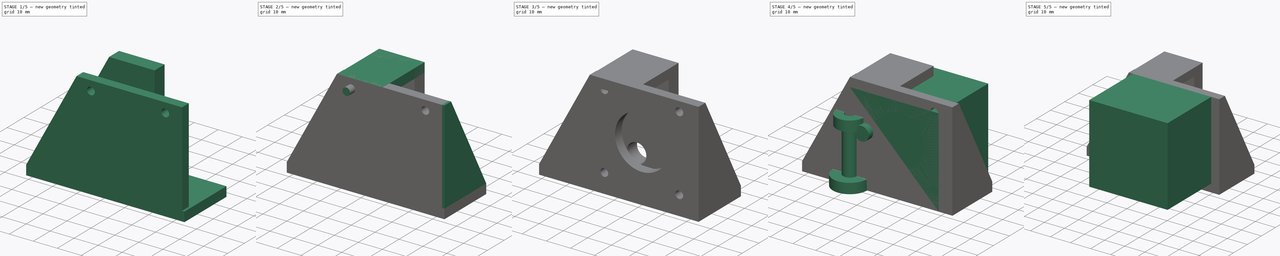
[diagram: build sequence overview — one tinted view per stage of 5, left to right]
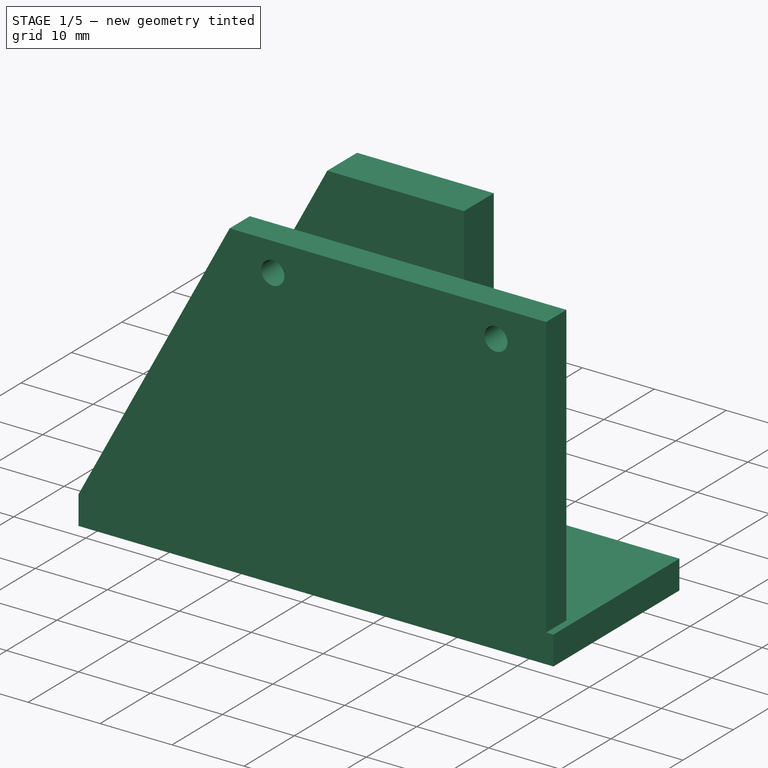
[diagram: stage 1 of 5 — iso view after this stage's code; geometry added in this stage tinted green]
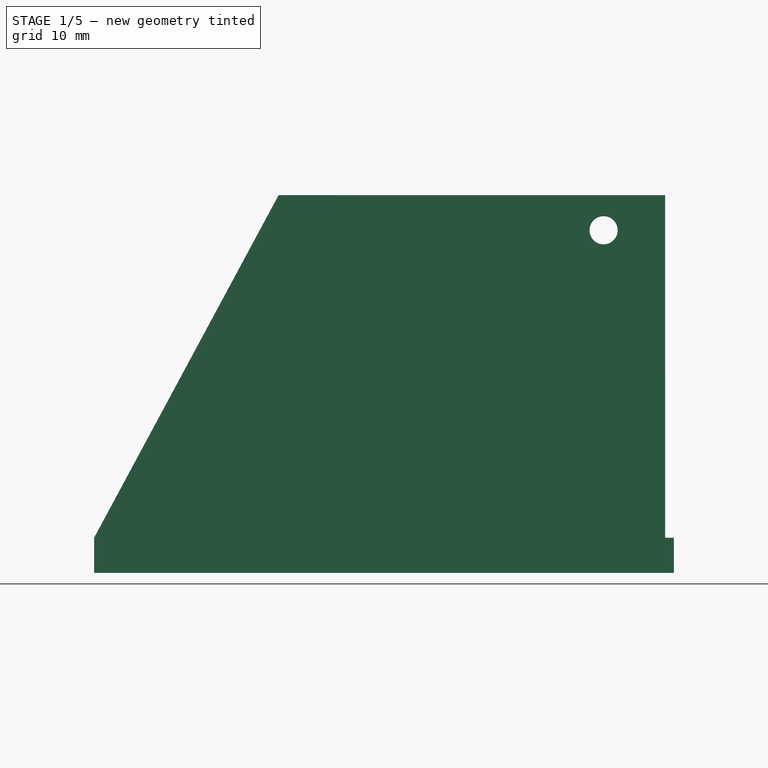
[diagram: stage 1 of 5 — front view after this stage's code; geometry added in this stage tinted green]
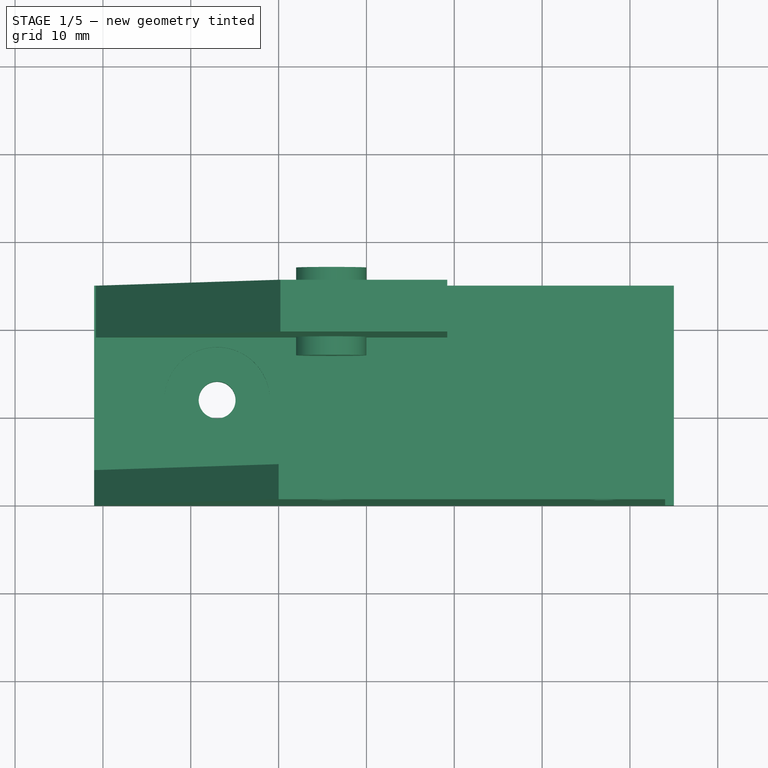
[diagram: stage 1 of 5 — top view after this stage's code; geometry added in this stage tinted green]
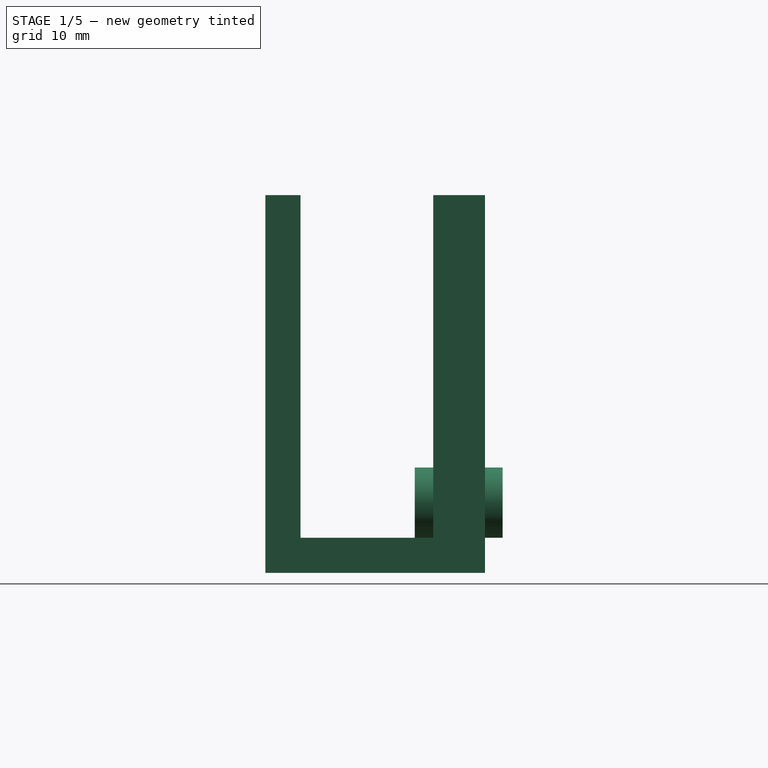
[diagram: stage 1 of 5 — right view after this stage's code; geometry added in this stage tinted green]
FCSTD DOCUMENT  (FreeCAD 0.18R4 (GitTag))
Label: ременная передача
License: All rights reserved
LicenseURL: http://en.wikipedia.org/wiki/All_rights_reserved
objects: Part::Cylinder×29, Part::Cut×21, Part::MultiFuse×6, Sketcher::SketchObject×5, Part::Box×5, Part::Extrusion×4, Part::FeaturePython×2
note: 72 computed .brp shape members not serialized (recipe doc carries the construction recipe); baked Part::Feature solids carry a one-line shape summary decoded from their .brp

FEATURE [Sketcher::SketchObject] Sketch001
  sketch-geometry (4):
    g0: ArcOfCircle CenterX=9 CenterY=15 CenterZ=0 NormalX=0 NormalY=0 NormalZ=1 AngleXU=0 Radius=27.2 StartAngle=6.09831 EndAngle=6.46806
    g1: ArcOfCircle CenterX=9 CenterY=15 CenterZ=0 NormalX=0 NormalY=0 NormalZ=1 AngleXU=0 Radius=22.8 StartAngle=6.06209 EndAngle=6.50428
    g2: ArcOfCircle CenterX=33.4907 CenterY=10.1383 CenterZ=0 NormalX=0 NormalY=0 NormalZ=1 AngleXU=0 Radius=2.25 StartAngle=3.20309 EndAngle=6.22168
    g3: ArcOfCircle CenterX=33.4907 CenterY=19.8617 CenterZ=0 NormalX=0 NormalY=0 NormalZ=1 AngleXU=0 Radius=2.25 StartAngle=0.0615005 EndAngle=3.08009
  constraints (15):
    c: DistanceX(g0) = 9
    c: DistanceY(g0) = 15
    c: Coincident(g1,g0)
    c: Radius(g1) = 22.8
    c: Radius(g0) = 27.2
    c: DistanceY(g-1,g1) = 10
    c: DistanceY(g-1,g0) = 10
    c: DistanceY(g1,g1) = 10
    c: DistanceY(g0,g0) = 10
    c: Coincident(g2,g1)
    c: Coincident(g2,g0)
    c: Radius(g2) = 2.25
    c: Coincident(g3,g1)
    c: Coincident(g0,g3)
    c: Radius(g3) = 2.25
FEATURE [Sketcher::SketchObject] Sketch
  Placement = pos=(0,0,0) rot=(0.57735,0.57735,0.57735;2.0944rad)
  sketch-geometry (5):
    g0: LineSegment StartX=0 StartY=0 StartZ=0 EndX=0 EndY=43 EndZ=0
    g1: LineSegment StartX=0 StartY=43 StartZ=0 EndX=4 EndY=43 EndZ=0
    g2: LineSegment StartX=0 StartY=0 StartZ=0 EndX=25 EndY=0 EndZ=0
    g3: LineSegment StartX=25 StartY=0 StartZ=0 EndX=25 EndY=4 EndZ=0
    g4: LineSegment StartX=4 StartY=43 StartZ=0 EndX=25 EndY=4 EndZ=0
  constraints (14):
    c: Coincident(g0,g-1)
    c: Vertical(g0)
    c: DistanceY(g0,g0) = 43
    c: Horizontal(g1)
    c: Coincident(g1,g0)
    c: DistanceX(g1,g1) = 4
    c: Coincident(g2,g0)
    c: Horizontal(g2)
    c: DistanceX(g2,g2) = 25
    c: Coincident(g3,g2)
    c: Vertical(g3)
    c: DistanceY(g3,g3) = 4
    c: Coincident(g4,g3)
    c: Coincident(g1,g4)
FEATURE [Part::Box] Box002  label="Куб002"
  AttacherType = Attacher::AttachEngine3D
  Height = 43
  Length = 44
  Width = 4
FEATURE [Part::Box] Box003  label="Куб003"
  AttacherType = Attacher::AttachEngine3D
  Height = 4
  Length = 66
  Placement = pos=(-21,0,0) rot=(0,0,1;0rad)
  Width = 25
FEATURE [Part::Cylinder] Cylinder017  label="Цилиндр015"
  Angle = 360
  AttacherType = Attacher::AttachEngine3D
  Height = 10
  Placement = pos=(6,-3,39) rot=(-1,0,0;1.5708rad)
  Radius = 1.6
FEATURE [Part::Cylinder] Cylinder018  label="Цилиндр016"
  Angle = 360
  AttacherType = Attacher::AttachEngine3D
  Height = 10
  Placement = pos=(37,-3,39) rot=(-1,0,0;1.5708rad)
  Radius = 1.6
FEATURE [Part::Cylinder] Cylinder020  label="Цилиндр018"
  Angle = 360
  AttacherType = Attacher::AttachEngine3D
  Height = 10
  Radius = 2.1
FEATURE [Part::Cylinder] Cylinder021  label="Цилиндр019"
  Angle = 360
  AttacherType = Attacher::AttachEngine3D
  Height = 6
  Placement = pos=(0,0,10) rot=(0,0,1;0rad)
  Radius = 6
FEATURE [Part::Cut] Cut010
  Base = -> Box002
  Tool = -> Cylinder018
FEATURE [Part::Cut] Cut011
  Base = -> Cut010
  Tool = -> Cylinder017
FEATURE [Sketcher::SketchObject] Sketch002
  sketch-geometry (4):
    g0: ArcOfCircle CenterX=9 CenterY=15 CenterZ=0 NormalX=0 NormalY=0 NormalZ=1 AngleXU=0 Radius=27.2 StartAngle=6.09831 EndAngle=6.46806
    g1: ArcOfCircle CenterX=9 CenterY=15 CenterZ=0 NormalX=0 NormalY=0 NormalZ=1 AngleXU=0 Radius=22.8 StartAngle=6.06209 EndAngle=6.50428
    g2: ArcOfCircle CenterX=33.4907 CenterY=10.1383 CenterZ=0 NormalX=0 NormalY=0 NormalZ=1 AngleXU=0 Radius=2.25 StartAngle=3.20309 EndAngle=6.22168
    g3: ArcOfCircle CenterX=33.4907 CenterY=19.8617 CenterZ=0 NormalX=0 NormalY=0 NormalZ=1 AngleXU=0 Radius=2.25 StartAngle=0.0615005 EndAngle=3.08009
  constraints (15):
    c: DistanceX(g0) = 9
    c: DistanceY(g0) = 15
    c: Coincident(g1,g0)
    c: Radius(g1) = 22.8
    c: Radius(g0) = 27.2
    c: DistanceY(g-1,g1) = 10
    c: DistanceY(g-1,g0) = 10
    c: DistanceY(g1,g1) = 10
    c: DistanceY(g0,g0) = 10
    c: Coincident(g2,g1)
    c: Coincident(g2,g0)
    c: Radius(g2) = 2.25
    c: Coincident(g3,g1)
    c: Coincident(g0,g3)
    c: Radius(g3) = 2.25
FEATURE [Sketcher::SketchObject] Sketch003
  Placement = pos=(0,0,0) rot=(0.57735,0.57735,0.57735;2.0944rad)
  sketch-geometry (5):
    g0: LineSegment StartX=0 StartY=0 StartZ=0 EndX=0 EndY=43 EndZ=0
    g1: LineSegment StartX=0 StartY=43 StartZ=0 EndX=4 EndY=43 EndZ=0
    g2: LineSegment StartX=0 StartY=0 StartZ=0 EndX=25 EndY=0 EndZ=0
    g3: LineSegment StartX=25 StartY=0 StartZ=0 EndX=25 EndY=4 EndZ=0
    g4: LineSegment StartX=4 StartY=43 StartZ=0 EndX=25 EndY=4 EndZ=0
  constraints (14):
    c: Coincident(g0,g-1)
    c: Vertical(g0)
    c: DistanceY(g0,g0) = 43
    c: Horizontal(g1)
    c: Coincident(g1,g0)
    c: DistanceX(g1,g1) = 4
    c: Coincident(g2,g0)
    c: Horizontal(g2)
    c: DistanceX(g2,g2) = 25
    c: Coincident(g3,g2)
    c: Vertical(g3)
    c: DistanceY(g3,g3) = 4
    c: Coincident(g4,g3)
    c: Coincident(g1,g4)
FEATURE [Part::Extrusion] Extrude005
  Base = -> Sketch003
  Dir = (1,0,0)
  DirMode = 0
  FaceMakerClass = Part::FaceMakerBullseye
  LengthFwd = 4
  LengthRev = 0
  Placement = pos=(4,1e-15,0) rot=(0,0,1;1.5708rad)
  Solid = true
  Symmetric = false
FEATURE [Sketcher::SketchObject] Sketch004
  Placement = pos=(0,0,0) rot=(0.57735,0.57735,0.57735;2.0944rad)
  sketch-geometry (5):
    g0: LineSegment StartX=0 StartY=0 StartZ=0 EndX=0 EndY=43 EndZ=0
    g1: LineSegment StartX=0 StartY=43 StartZ=0 EndX=19 EndY=43 EndZ=0
    g2: LineSegment StartX=0 StartY=0 StartZ=0 EndX=40 EndY=0 EndZ=0
    g3: LineSegment StartX=40 StartY=0 StartZ=0 EndX=40 EndY=4 EndZ=0
    g4: LineSegment StartX=19 StartY=43 StartZ=0 EndX=40 EndY=4 EndZ=0
  constraints (14):
    c: Coincident(g0,g-1)
    c: Vertical(g0)
    c: DistanceY(g0,g0) = 43
    c: Horizontal(g1)
    c: Coincident(g1,g0)
    c: DistanceX(g1,g1) = 19
    c: Coincident(g2,g0)
    c: Horizontal(g2)
    c: DistanceX(g2,g2) = 40
    c: Coincident(g3,g2)
    c: Vertical(g3)
    c: DistanceY(g3,g3) = 4
    c: Coincident(g4,g3)
    c: Coincident(g1,g4)
FEATURE [Part::Extrusion] Extrude006
  Base = -> Sketch004
  Dir = (1,0,0)
  DirMode = 0
  FaceMakerClass = Part::FaceMakerBullseye
  LengthFwd = 5.9
  LengthRev = 0
  Placement = pos=(19.2,19.1,0) rot=(0,0,1;1.5708rad)
  Solid = true
  Symmetric = false
FEATURE [Part::MultiFuse] Fusion004  label="Саморез001"
  Placement = pos=(-7,12,-7) rot=(0,0,1;0rad)
  Shapes = -> [Cylinder020,Cylinder021]
FEATURE [Part::Cut] Cut
  Base = -> Box003
  Tool = -> Fusion004
FEATURE [Part::Cylinder] Cylinder032  label="Цилиндр031"
  Angle = 360
  AttacherType = Attacher::AttachEngine3D
  Height = 10
  Placement = pos=(6,27,8) rot=(1,0,0;1.5708rad)
  Radius = 4
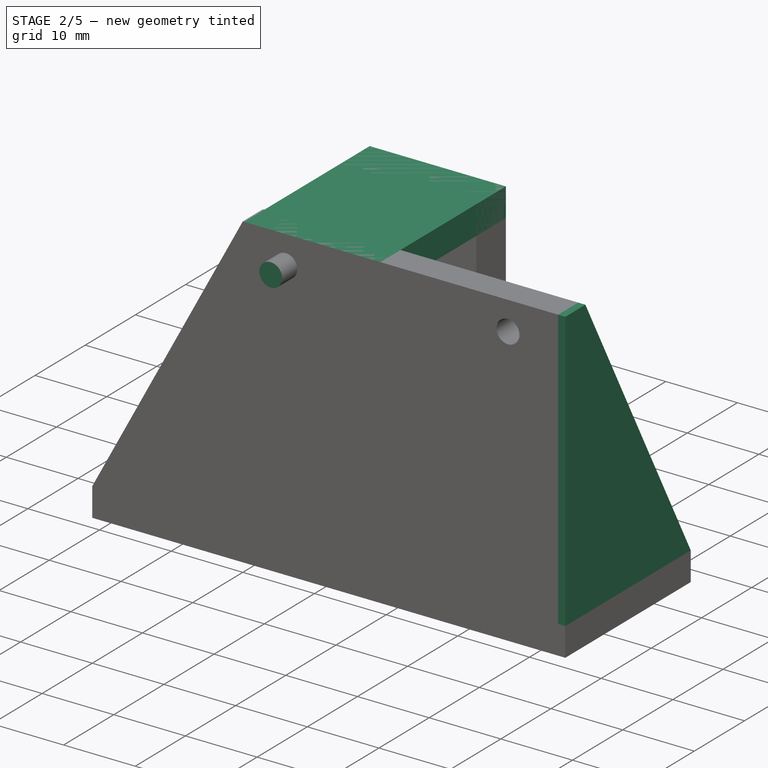
[diagram: stage 2 of 5 — iso view after this stage's code; geometry added in this stage tinted green]
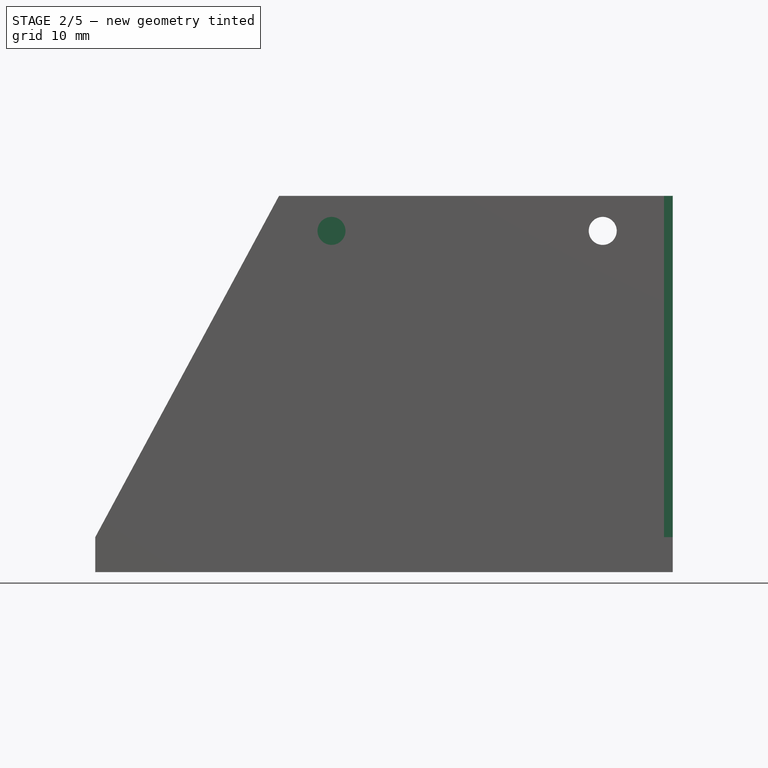
[diagram: stage 2 of 5 — front view after this stage's code; geometry added in this stage tinted green]
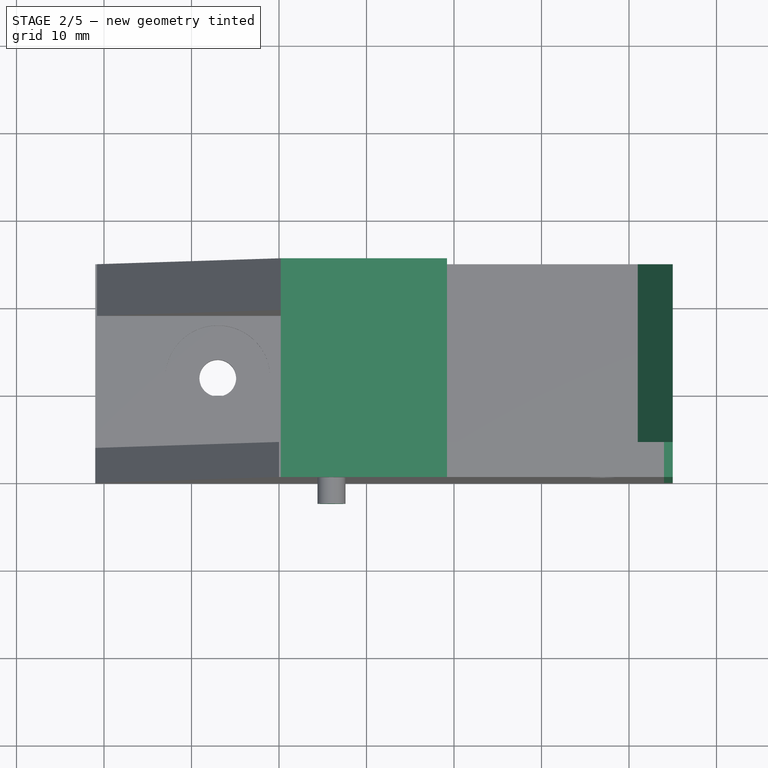
[diagram: stage 2 of 5 — top view after this stage's code; geometry added in this stage tinted green]
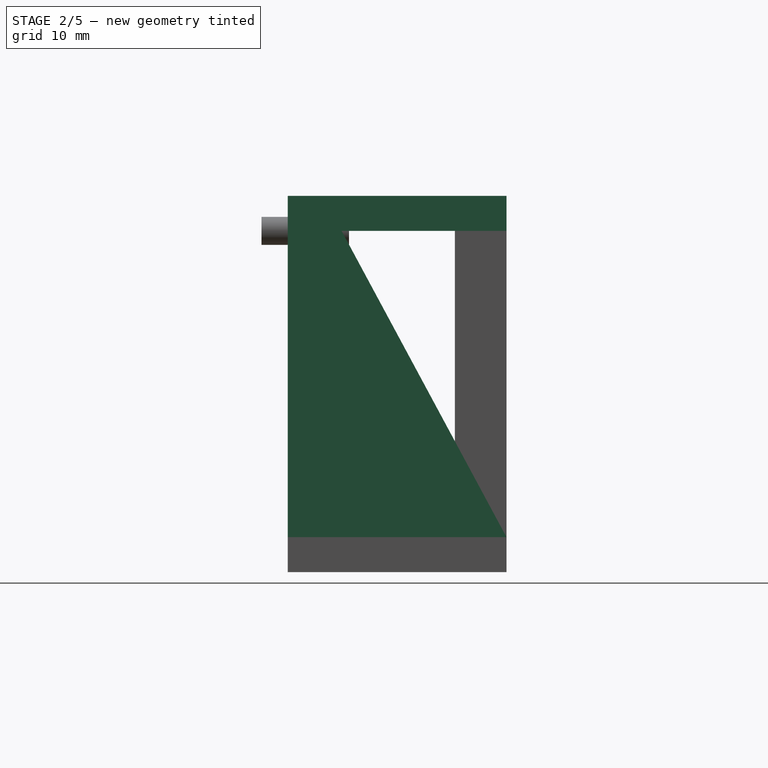
[diagram: stage 2 of 5 — right view after this stage's code; geometry added in this stage tinted green]
FEATURE [Part::Cylinder] Cylinder015  label="Цилиндр013"
  Angle = 360
  AttacherType = Attacher::AttachEngine3D
  Height = 10
  Placement = pos=(37,-3,8) rot=(-1,0,0;1.5708rad)
  Radius = 1.6
FEATURE [Part::Cylinder] Cylinder016  label="Цилиндр014"
  Angle = 360
  AttacherType = Attacher::AttachEngine3D
  Height = 10
  Placement = pos=(6,-3,8) rot=(-1,0,0;1.5708rad)
  Radius = 1.6
FEATURE [Part::Cylinder] Cylinder019  label="Цилиндр017"
  Angle = 360
  AttacherType = Attacher::AttachEngine3D
  Height = 10
  Placement = pos=(21.5,-2,23.5) rot=(-1,0,0;1.5708rad)
  Radius = 11.1
FEATURE [Part::Extrusion] Extrude001
  Base = -> Sketch
  Dir = (1,0,0)
  DirMode = 0
  FaceMakerClass = Part::FaceMakerBullseye
  LengthFwd = 4
  LengthRev = 0
  Placement = pos=(41,0,0) rot=(0,0,1;0rad)
  Solid = true
  Symmetric = false
FEATURE [Part::Cut] Cut012
  Base = -> Cut011
  Tool = -> Cylinder016
FEATURE [Part::Cut] Cut013
  Base = -> Cut012
  Tool = -> Cylinder015
FEATURE [Part::Cut] Cut014
  Base = -> Cut013
  Tool = -> Cylinder019
FEATURE [Part::Cylinder] Cylinder023  label="Цилиндр022"
  Angle = 360
  AttacherType = Attacher::AttachEngine3D
  Height = 10
  Placement = pos=(6,-3,39) rot=(-1,0,0;1.5708rad)
  Radius = 1.6
FEATURE [Part::Box] Box005  label="Куб005"
  AttacherType = Attacher::AttachEngine3D
  Height = 43
  Length = 44
  Width = 4
FEATURE [Part::Cylinder] Cylinder029  label="Цилиндр028"
  Angle = 360
  AttacherType = Attacher::AttachEngine3D
  Height = 10
  Placement = pos=(37,-3,39) rot=(-1,0,0;1.5708rad)
  Radius = 1.6
FEATURE [Part::Cut] Cut017
  Base = -> Box005
  Tool = -> Cylinder029
FEATURE [Part::MultiFuse] Fusion
  Shapes = -> [Cut,Extrude005,Cut014,Extrude001,Extrude006]
FEATURE [Part::Box] Box  label="Куб"
  AttacherType = Attacher::AttachEngine3D
  Height = 4
  Length = 19
  Placement = pos=(0.2,0,39) rot=(0,0,1;0rad)
  Width = 25
FEATURE [Part::Cut] Cut029
  Base = -> Fusion
  Tool = -> Cylinder032
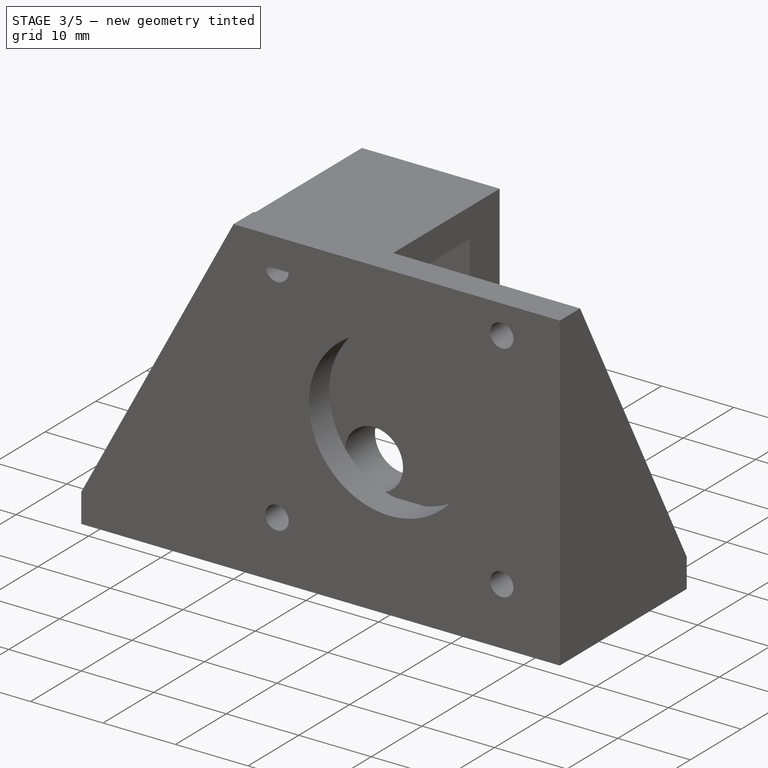
[diagram: stage 3 of 5 — iso view after this stage's code; geometry added in this stage tinted green]
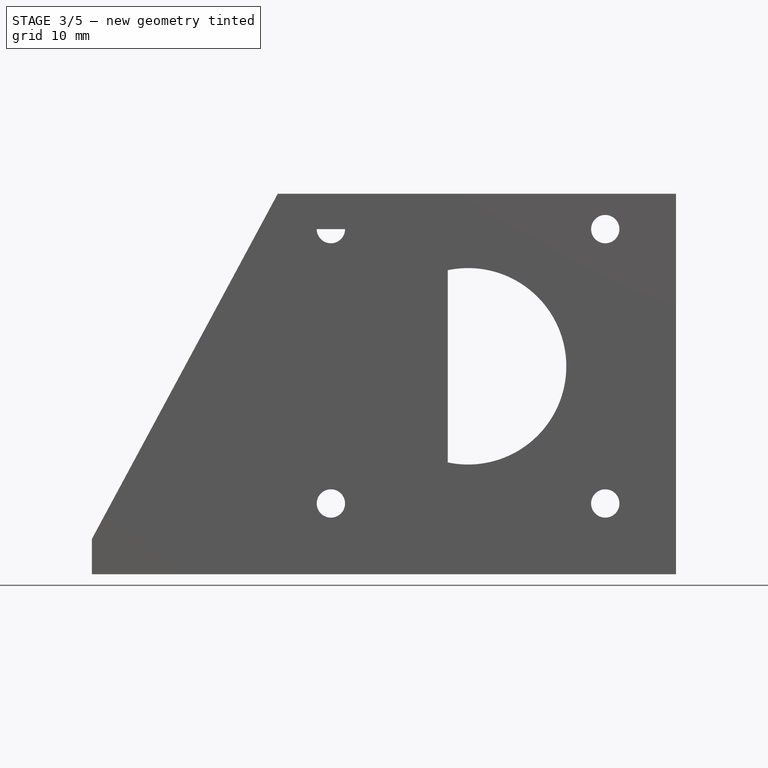
[diagram: stage 3 of 5 — front view after this stage's code; geometry added in this stage tinted green]
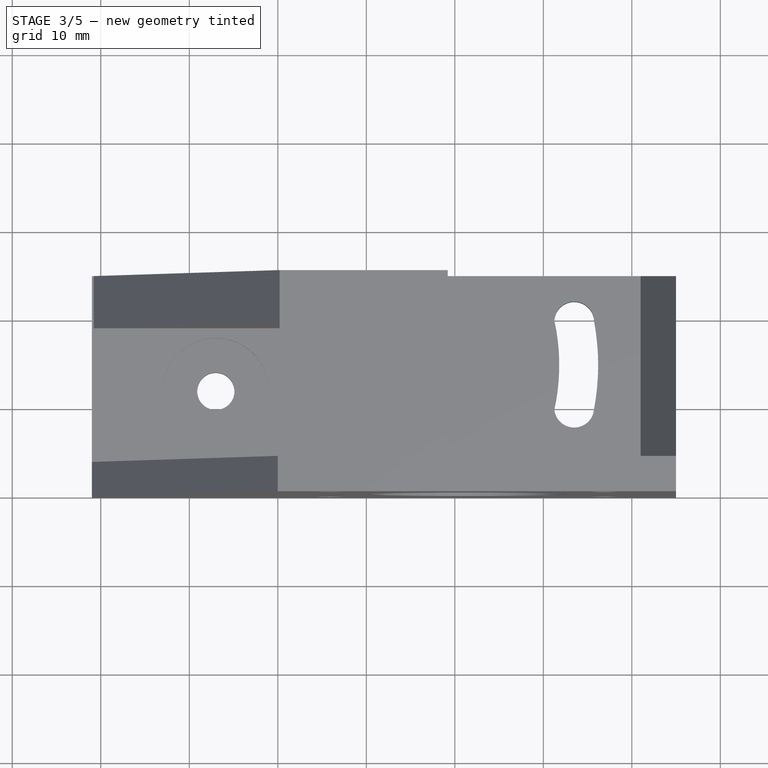
[diagram: stage 3 of 5 — top view after this stage's code; geometry added in this stage tinted green]
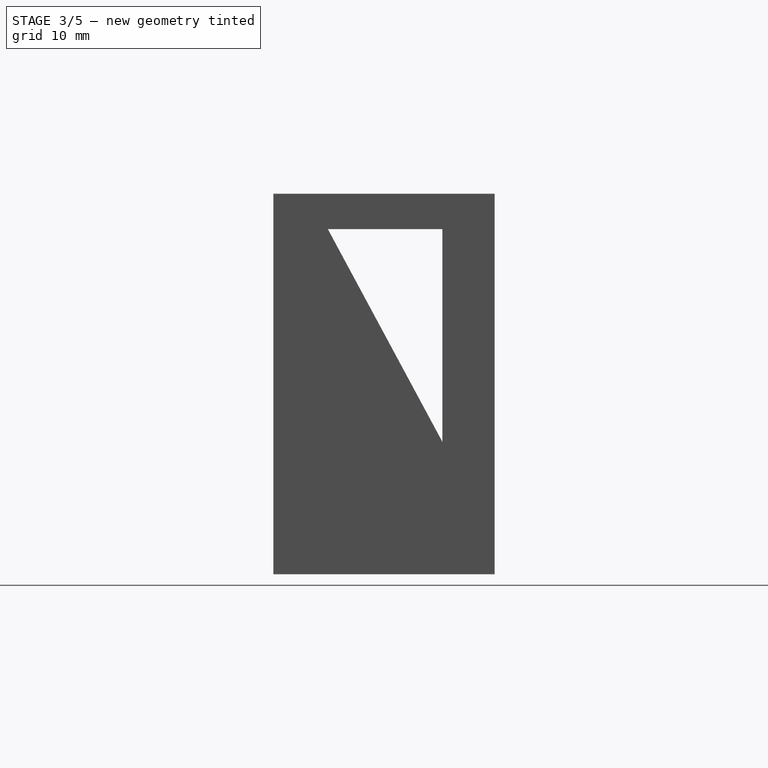
[diagram: stage 3 of 5 — right view after this stage's code; geometry added in this stage tinted green]
FEATURE [Part::Extrusion] Extrude002
  Base = -> Sketch001
  Dir = (0,0,-1)
  DirMode = 0
  FaceMakerClass = Part::FaceMakerBullseye
  LengthFwd = 10
  LengthRev = 0
  Placement = pos=(0,0,8) rot=(0,0,1;0rad)
  Solid = true
  Symmetric = false
FEATURE [Part::Cylinder] Cylinder024  label="Цилиндр023"
  Angle = 360
  AttacherType = Attacher::AttachEngine3D
  Height = 10
  Placement = pos=(6,-3,8) rot=(-1,0,0;1.5708rad)
  Radius = 1.6
FEATURE [Part::Cylinder] Cylinder025  label="Цилиндр024"
  Angle = 360
  AttacherType = Attacher::AttachEngine3D
  Height = 10
  Placement = pos=(37,-3,8) rot=(-1,0,0;1.5708rad)
  Radius = 1.6
FEATURE [Part::Cylinder] Cylinder028  label="Цилиндр027"
  Angle = 360
  AttacherType = Attacher::AttachEngine3D
  Height = 10
  Placement = pos=(21.5,-2,23.5) rot=(-1,0,0;1.5708rad)
  Radius = 11.1
FEATURE [Part::Cut] Cut018
  Base = -> Cut017
  Tool = -> Cylinder023
FEATURE [Part::Cut] Cut021
  Base = -> Cut018
  Tool = -> Cylinder024
FEATURE [Part::Cut] Cut022
  Base = -> Cut021
  Tool = -> Cylinder025
FEATURE [Part::Cut] Cut016
  Base = -> Cut022
  Tool = -> Cylinder028
FEATURE [Part::Cylinder] Cylinder038  label="Цилиндр037"
  Angle = 360
  AttacherType = Attacher::AttachEngine3D
  Height = 23
  Placement = pos=(6,27,39) rot=(1,0,0;1.5708rad)
  Radius = 2.5
FEATURE [Part::MultiFuse] Fusion008
  Shapes = -> [Cut016,Box]
FEATURE [Part::MultiFuse] Fusion009
  Shapes = -> [Fusion008,Cut029]
FEATURE [Part::Cut] Cut030
  Base = -> Fusion009
  Tool = -> Cylinder038
FEATURE [Part::Cut] Cut031
  Base = -> Cut030
  Tool = -> Extrude002
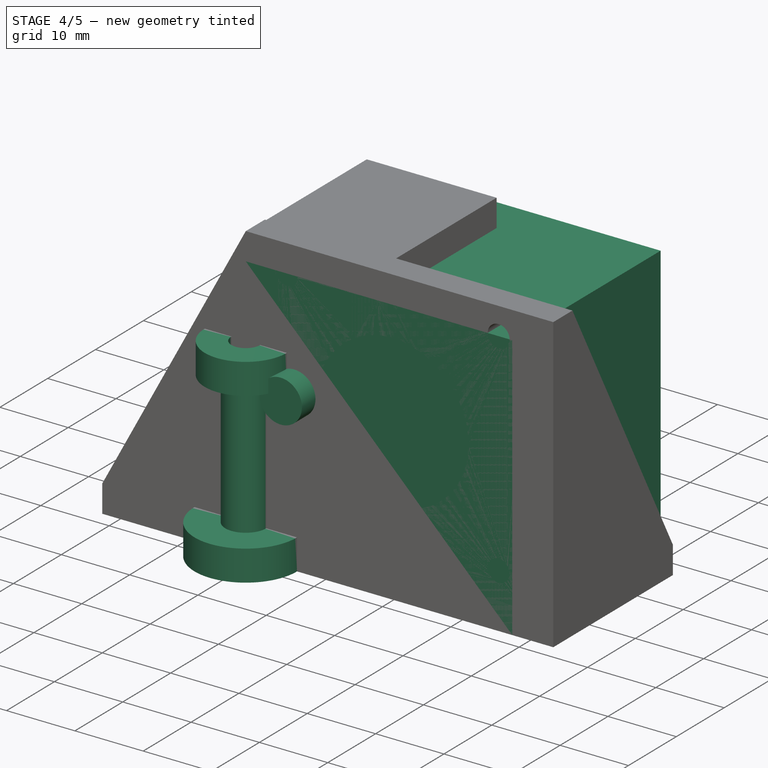
[diagram: stage 4 of 5 — iso view after this stage's code; geometry added in this stage tinted green]
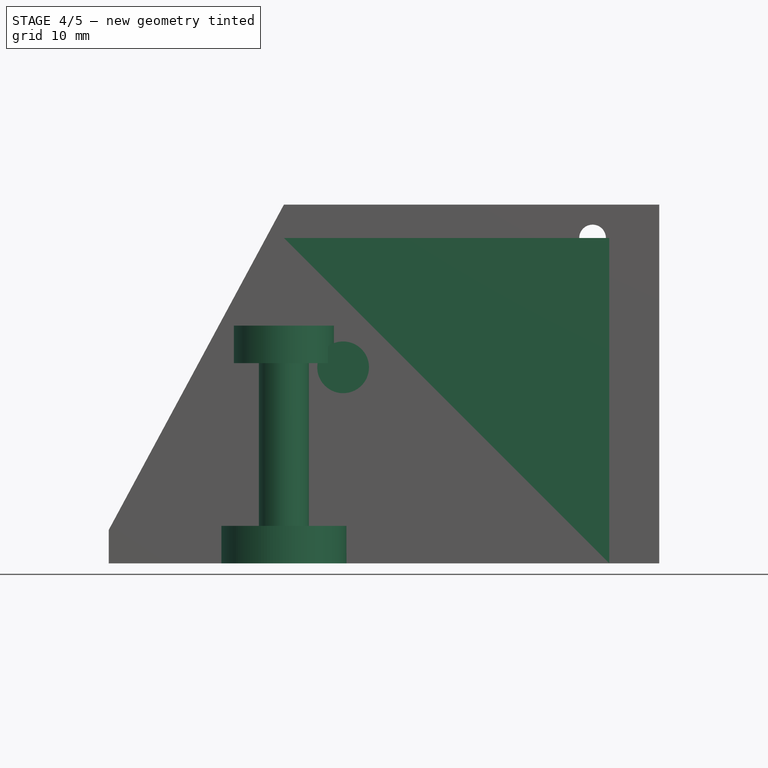
[diagram: stage 4 of 5 — front view after this stage's code; geometry added in this stage tinted green]
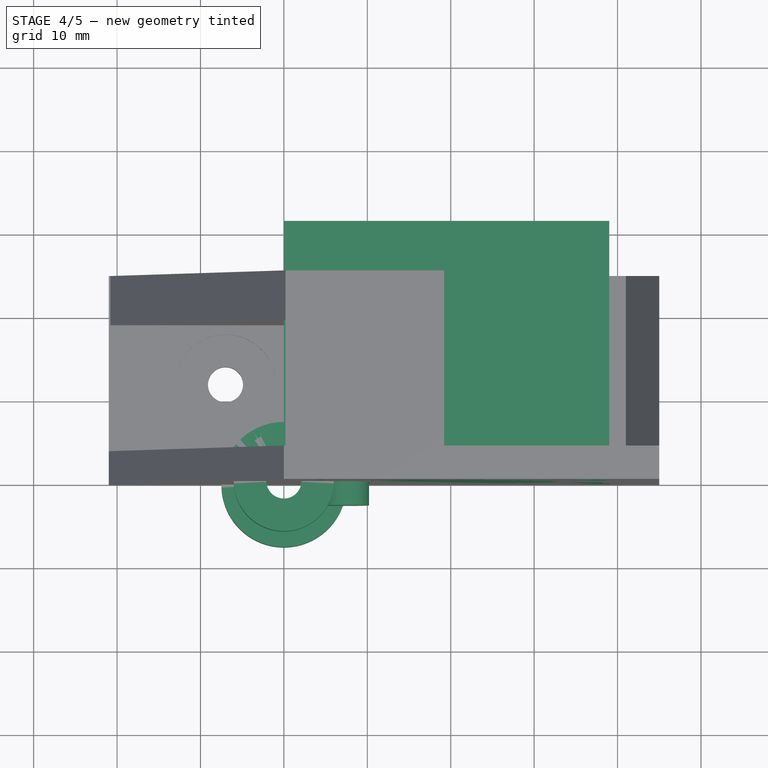
[diagram: stage 4 of 5 — top view after this stage's code; geometry added in this stage tinted green]
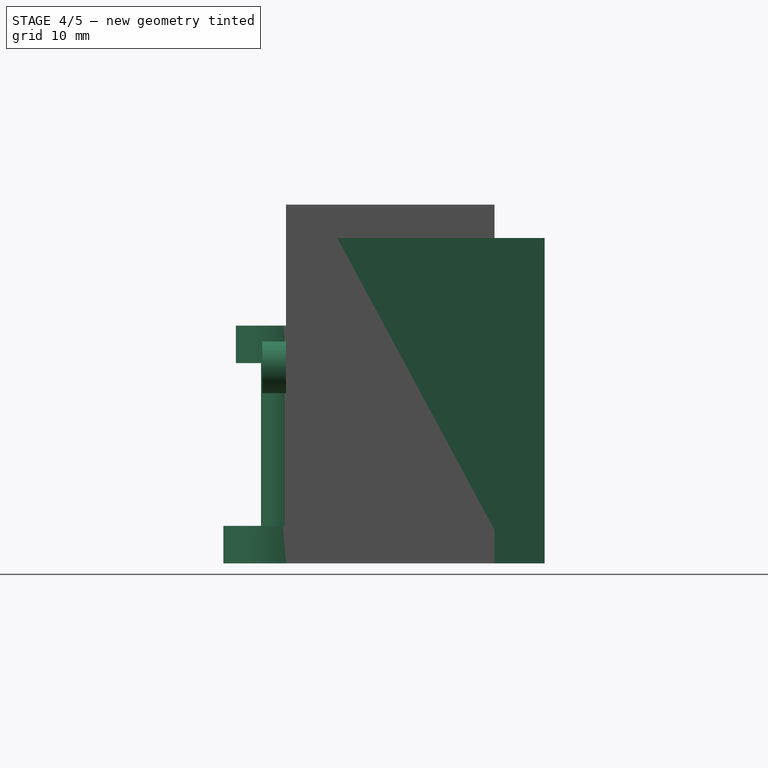
[diagram: stage 4 of 5 — right view after this stage's code; geometry added in this stage tinted green]
FEATURE [Part::Cylinder] Cylinder009  label="Цилиндр021"
  Angle = 360
  AttacherType = Attacher::AttachEngine3D
  Height = 10
  Placement = pos=(4,23,35) rot=(-1,0,0;1.5708rad)
  Radius = 1.5
FEATURE [Part::Box] Box001  label="Куб001"
  AttacherType = Attacher::AttachEngine3D
  Height = 39
  Length = 39
  Width = 31
FEATURE [Part::Cut] Cut005
  Base = -> Box001
  Tool = -> Cylinder009
FEATURE [Part::Cylinder] Cylinder031  label="Цилиндр030"
  Angle = 360
  AttacherType = Attacher::AttachEngine3D
  Height = 32.5
  Placement = pos=(7.1,-2.84478,23.5) rot=(-1,0,0;1.5708rad)
  Radius = 3.1
FEATURE [Part::Cylinder] Cylinder033  label="Цилиндр032"
  Angle = 360
  AttacherType = Attacher::AttachEngine3D
  Height = 19.5
  Placement = pos=(0,0,4.5) rot=(0,0,1;0rad)
  Radius = 3
FEATURE [Part::Cylinder] Cylinder034  label="Цилиндр033"
  Angle = 360
  AttacherType = Attacher::AttachEngine3D
  Height = 33.5
  Placement = pos=(0,0,-4.6) rot=(0,0,1;0rad)
  Radius = 2.1
FEATURE [Part::Cylinder] Cylinder035  label="Цилиндр034"
  Angle = 360
  AttacherType = Attacher::AttachEngine3D
  Height = 4.5
  Radius = 7.5
FEATURE [Part::Cylinder] Cylinder036  label="Цилиндр035"
  Angle = 360
  AttacherType = Attacher::AttachEngine3D
  Height = 4.5
  Placement = pos=(0,0,24) rot=(0,0,1;0rad)
  Radius = 6
FEATURE [Part::MultiFuse] Fusion007
  Shapes = -> [Cylinder035,Cylinder033]
FEATURE [Part::Cylinder] Cylinder037  label="Цилиндр036"
  Angle = 360
  AttacherType = Attacher::AttachEngine3D
  Height = 33.5
  Placement = pos=(0,0,-4.6) rot=(0,0,1;0rad)
  Radius = 2.1
FEATURE [Part::Cut] Cut027
  Base = -> Fusion007
  Tool = -> Cylinder034
FEATURE [Part::Cut] Cut028
  Base = -> Cylinder036
  Tool = -> Cylinder037
FEATURE [Part::Cylinder] Cylinder039  label="Цилиндр038"
  Angle = 360
  AttacherType = Attacher::AttachEngine3D
  Height = 32.5
  Placement = pos=(7.1,-2.84478,23.5) rot=(-1,0,0;1.5708rad)
  Radius = 3.1
FEATURE [Part::Cut] Cut032
  Base = -> Cut031
  Tool = -> Cylinder031
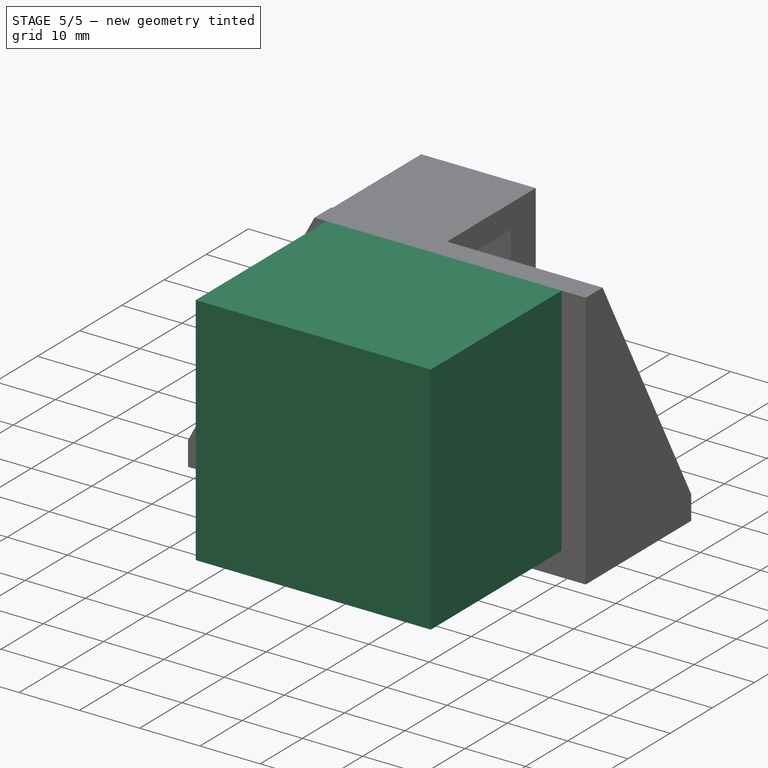
[diagram: stage 5 of 5 — iso view after this stage's code; geometry added in this stage tinted green]
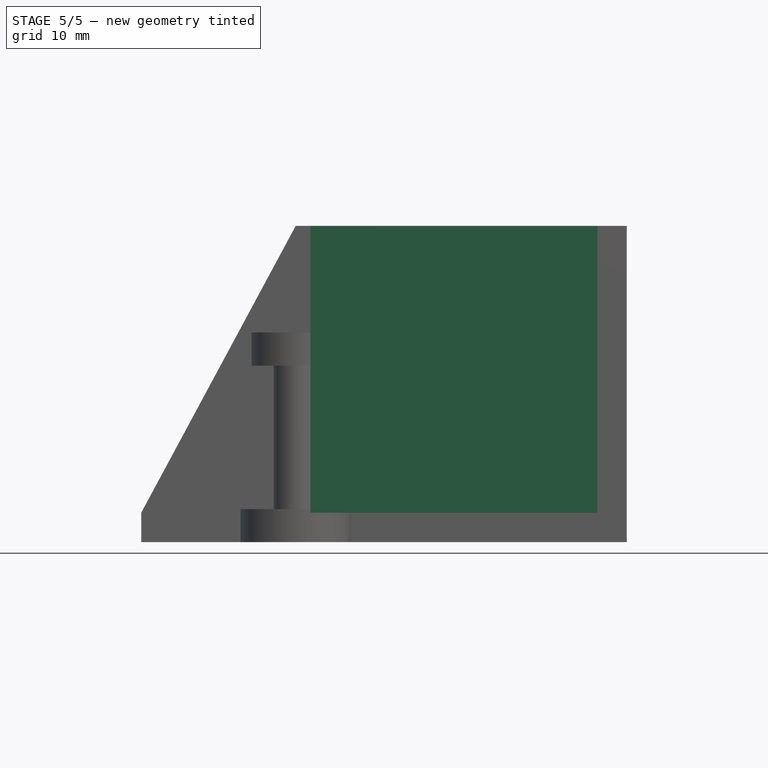
[diagram: stage 5 of 5 — front view after this stage's code; geometry added in this stage tinted green]
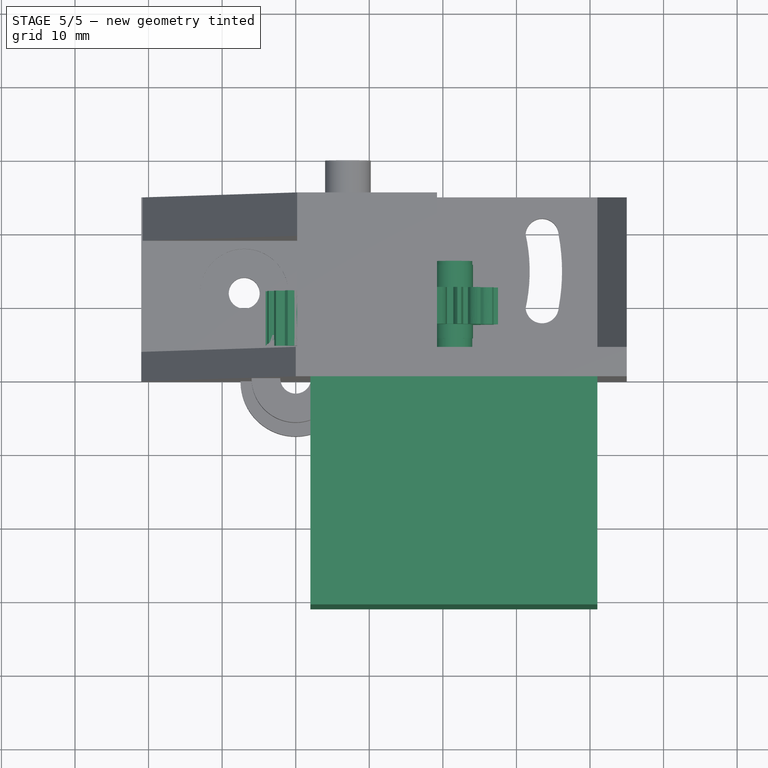
[diagram: stage 5 of 5 — top view after this stage's code; geometry added in this stage tinted green]
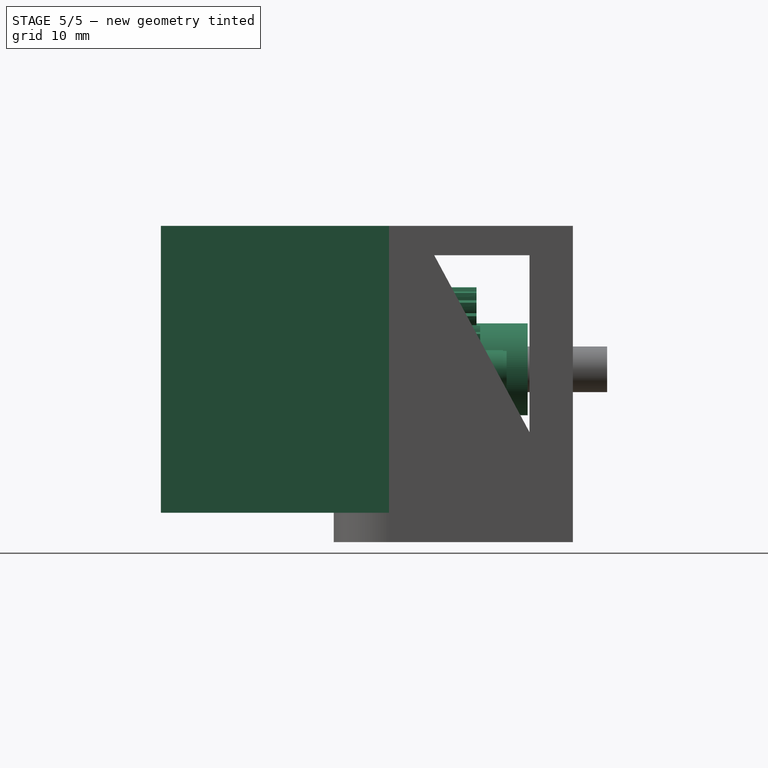
[diagram: stage 5 of 5 — right view after this stage's code; geometry added in this stage tinted green]
FEATURE [Part::FeaturePython] InvoluteGear  # WARN: FeaturePython — macro-defined, semantics opaque (R4)
  Placement = pos=(21.5,12.4,23.5) rot=(1,0,0;1.5708rad)
  backlash = 0
  beta = 0
  clearance = 0.25
  double_helix = false
  dw = 10.4
  head = 0
  height = 5
  module = 0.8
  numpoints = 6
  pressure_angle = 20
  properties_from_tool = true
  reversed_backlash = false
  shift = 0
  simple = false
  teeth = 13
  transverse_pitch = 2.51327
  undercut = false
FEATURE [Part::Cylinder] Cylinder  label="Цилиндр"
  Angle = 360
  AttacherType = Attacher::AttachEngine3D
  Height = 10
  Placement = pos=(21.5,5.5,23.5) rot=(-1,0,0;1.5708rad)
  Radius = 2.6
FEATURE [Part::Cylinder] Cylinder022  label="Цилиндр020"
  Angle = 360
  AttacherType = Attacher::AttachEngine3D
  Height = 7
  Placement = pos=(7.1,11.8552,23.5) rot=(-1,0,0;1.5708rad)
  Radius = 6.25
FEATURE [Part::FeaturePython] InvoluteGear001  # WARN: FeaturePython — macro-defined, semantics opaque (R4)
  Placement = pos=(7.1,11.9,23.5) rot=(1,0,0;1.5708rad)
  backlash = 0
  beta = 0
  clearance = 0.25
  double_helix = false
  dw = 20.8
  head = 0
  height = 7.5
  module = 0.8
  numpoints = 6
  pressure_angle = 20
  properties_from_tool = true
  reversed_backlash = false
  shift = 0
  simple = false
  teeth = 26
  transverse_pitch = 2.51327
  undercut = false
FEATURE [Part::Cylinder] Cylinder011  label="Цилиндр009"
  Angle = 360
  AttacherType = Attacher::AttachEngine3D
  Height = 10
  Placement = pos=(35,23,4) rot=(-1,0,0;1.5708rad)
  Radius = 1.5
FEATURE [Part::Cylinder] Cylinder010  label="Цилиндр008"
  Angle = 360
  AttacherType = Attacher::AttachEngine3D
  Height = 10
  Placement = pos=(35,23,35) rot=(-1,0,0;1.5708rad)
  Radius = 1.5
FEATURE [Part::Cylinder] Cylinder012  label="Цилиндр010"
  Angle = 360
  AttacherType = Attacher::AttachEngine3D
  Height = 10
  Placement = pos=(4,23,4) rot=(-1,0,0;1.5708rad)
  Radius = 1.5
FEATURE [Part::Cylinder] Cylinder014  label="Цилиндр012"
  Angle = 360
  AttacherType = Attacher::AttachEngine3D
  Height = 14
  Placement = pos=(19.5,33,19.5) rot=(-1,0,0;1.5708rad)
  Radius = 2.5
FEATURE [Part::Cylinder] Cylinder013  label="Цилиндр011"
  Angle = 360
  AttacherType = Attacher::AttachEngine3D
  Height = 2
  Placement = pos=(19.5,33,19.5) rot=(1,0,0;1.5708rad)
  Radius = 11
FEATURE [Part::Cut] Cut006
  Base = -> Cut005
  Tool = -> Cylinder012
FEATURE [Part::Cut] Cut007
  Base = -> Cut006
  Tool = -> Cylinder011
FEATURE [Part::Cut] Cut008
  Base = -> Cut007
  Tool = -> Cylinder010
FEATURE [Part::MultiFuse] Fusion001  label="Шаговый двигатель"
  Placement = pos=(2,-31,4) rot=(0,0,1;0rad)
  Shapes = -> [Cut008,Cylinder013,Cylinder014]
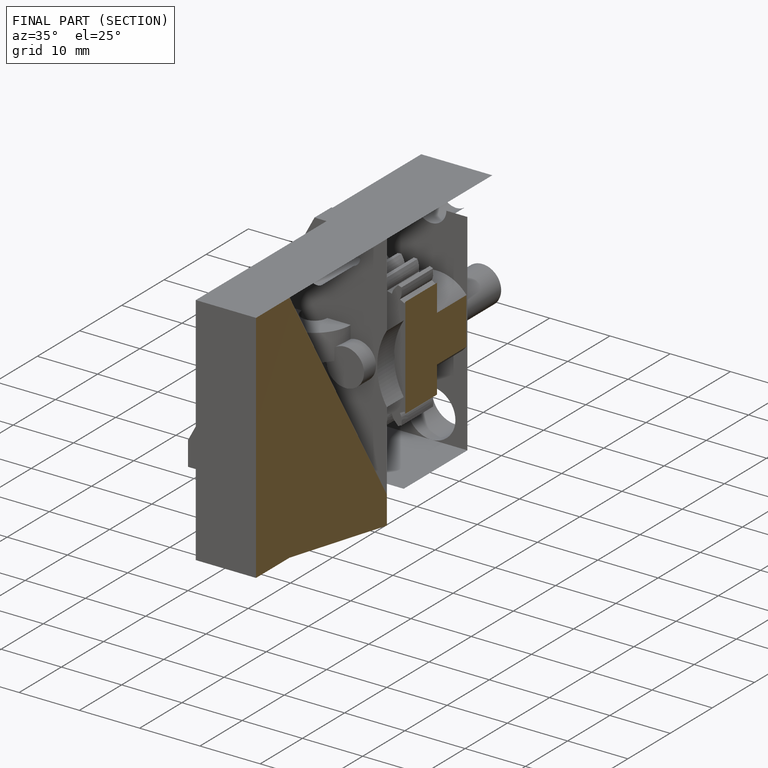
[diagram: finished part — half-section view (interior)]
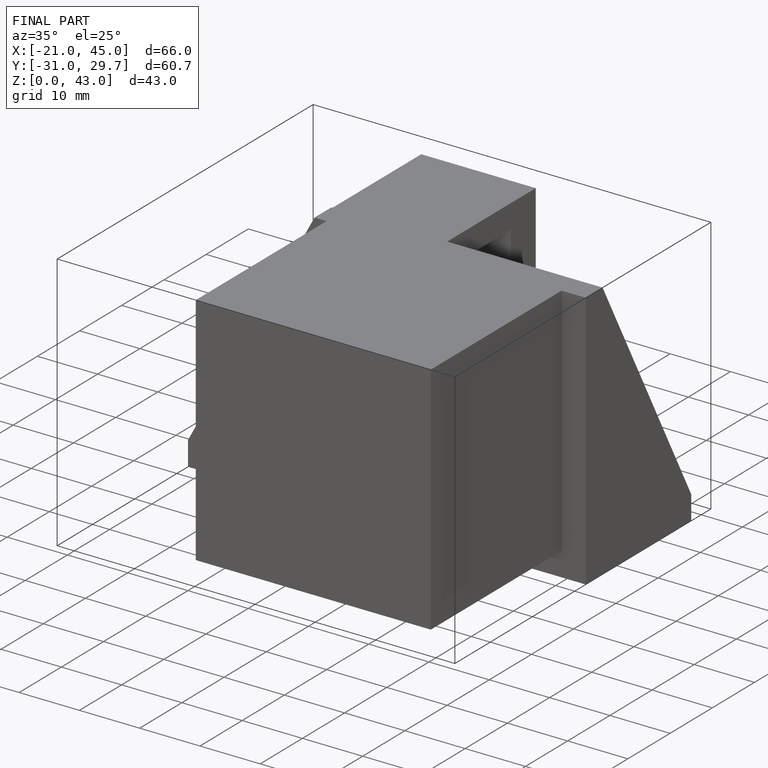
[diagram: finished part — iso view with bounding-box wireframe]
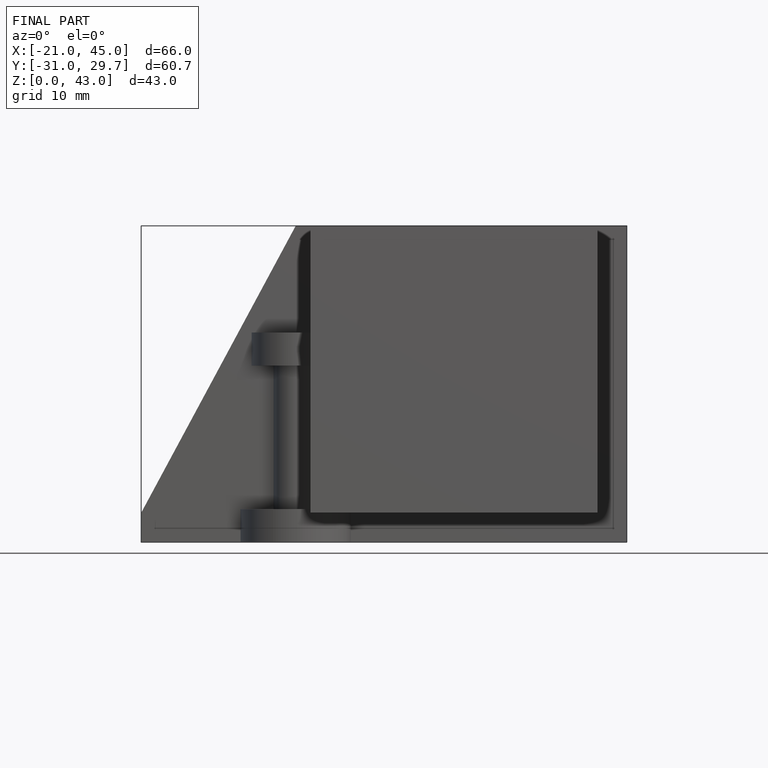
[diagram: finished part — front view with bounding-box wireframe]
